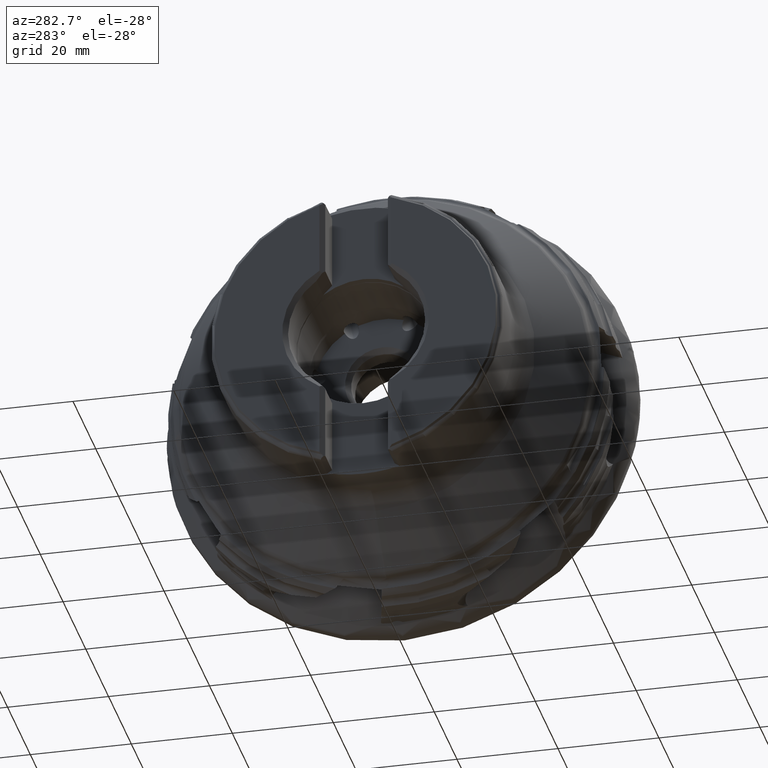
[diagram: clean part render]
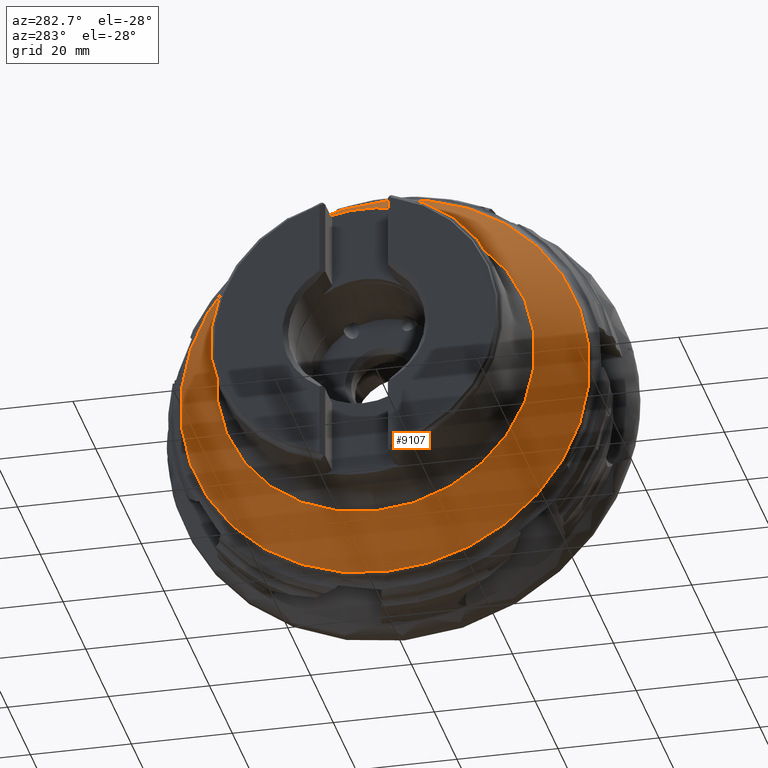
[diagram: same view with one face highlighted and labeled with its STEP entity id]
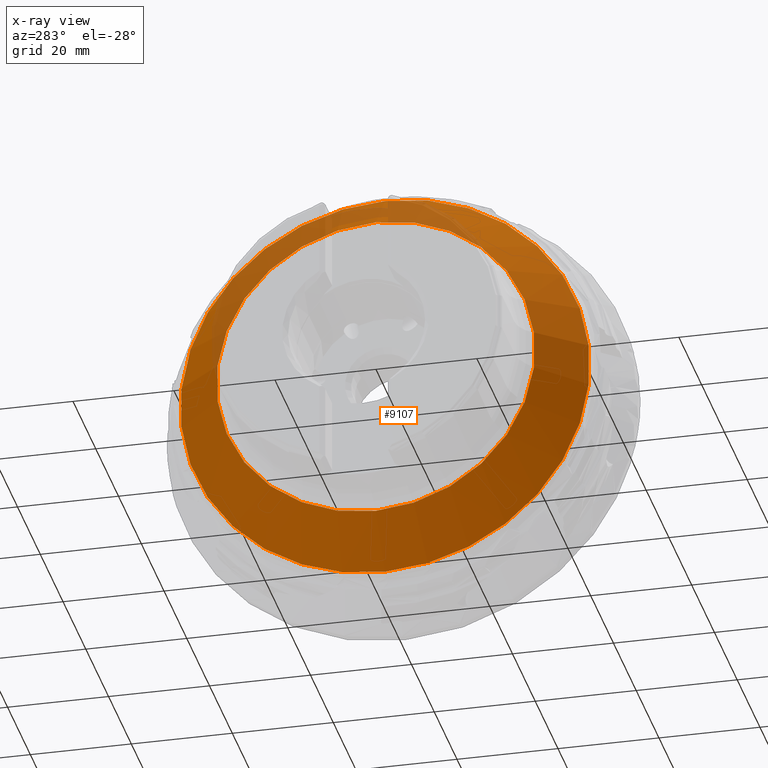
[diagram: x-ray of the same camera — body ghosted, the highlighted face saturated]
A machine part, auxiliary view. The second image highlights one B-rep face of the part: STEP entity #9107.
The next image is the same camera in x-ray: the body ghosted, the highlighted face saturated — about 12% of this face is hidden behind the body in this view.
In plain terms, the highlighted conical surface has half-angle 47.193 deg.
Its self-contained STEP definition (entity closure, byte-faithful):
#23 = CARTESIAN_POINT ( 'NONE',  ( -31.47836134986215500, 0.0000000000000000000, -31.56371707220200700 ) ) ;
#118 = FACE_OUTER_BOUND ( 'NONE', #4409, .T. ) ;
#449 = CIRCLE ( 'NONE', #5071, 40.54549999999998300 ) ;
#996 = EDGE_CURVE ( 'NONE', #5906, #5906, #449, .T. ) ;
#1194 = VERTEX_POINT ( 'NONE', #23 ) ;
#1369 = CARTESIAN_POINT ( 'NONE',  ( -23.15900000000001000, 0.0000000000000000000, 0.0000000000000000000 ) ) ;
#2839 = CARTESIAN_POINT ( 'NONE',  ( -23.15900000000001000, 0.0000000000000000000, 0.0000000000000000000 ) ) ;
#2949 = DIRECTION ( 'NONE',  ( 1.000000000000000000, -0.0000000000000000000, -0.0000000000000000000 ) ) ;
#3329 = CIRCLE ( 'NONE', #7478, 31.56371707220200700 ) ;
#3588 = CARTESIAN_POINT ( 'NONE',  ( -31.47836134986215500, 0.0000000000000000000, 0.0000000000000000000 ) ) ;
#3628 = DIRECTION ( 'NONE',  ( 0.0000000000000000000, 0.0000000000000000000, -1.000000000000000000 ) ) ;
#3829 = CONICAL_SURFACE ( 'NONE', #9885, 40.54549999999998300, 0.8236672026773257400 ) ;
#4072 = FACE_BOUND ( 'NONE', #8612, .T. ) ;
#4375 = DIRECTION ( 'NONE',  ( 0.0000000000000000000, 0.0000000000000000000, -1.000000000000000000 ) ) ;
#4409 = EDGE_LOOP ( 'NONE', ( #7891 ) ) ;
#5019 = EDGE_CURVE ( 'NONE', #1194, #1194, #3329, .T. ) ;
#5071 = AXIS2_PLACEMENT_3D ( 'NONE', #2839, #8393, #3628 ) ;
#5508 = CARTESIAN_POINT ( 'NONE',  ( -23.15900000000001000, 0.0000000000000000000, -40.54549999999998300 ) ) ;
#5511 = ORIENTED_EDGE ( 'NONE', *, *, #5019, .T. ) ;
#5906 = VERTEX_POINT ( 'NONE', #5508 ) ;
#6907 = DIRECTION ( 'NONE',  ( 0.0000000000000000000, 0.0000000000000000000, -1.000000000000000000 ) ) ;
#7478 = AXIS2_PLACEMENT_3D ( 'NONE', #3588, #9122, #4375 ) ;
#7891 = ORIENTED_EDGE ( 'NONE', *, *, #996, .F. ) ;
#8393 = DIRECTION ( 'NONE',  ( 1.000000000000000000, -0.0000000000000000000, -0.0000000000000000000 ) ) ;
#8612 = EDGE_LOOP ( 'NONE', ( #5511 ) ) ;
#9107 = ADVANCED_FACE ( 'NONE', ( #4072, #118 ), #3829, .T. ) ;
#9122 = DIRECTION ( 'NONE',  ( 1.000000000000000000, -0.0000000000000000000, -0.0000000000000000000 ) ) ;
#9885 = AXIS2_PLACEMENT_3D ( 'NONE', #1369, #2949, #6907 ) ;